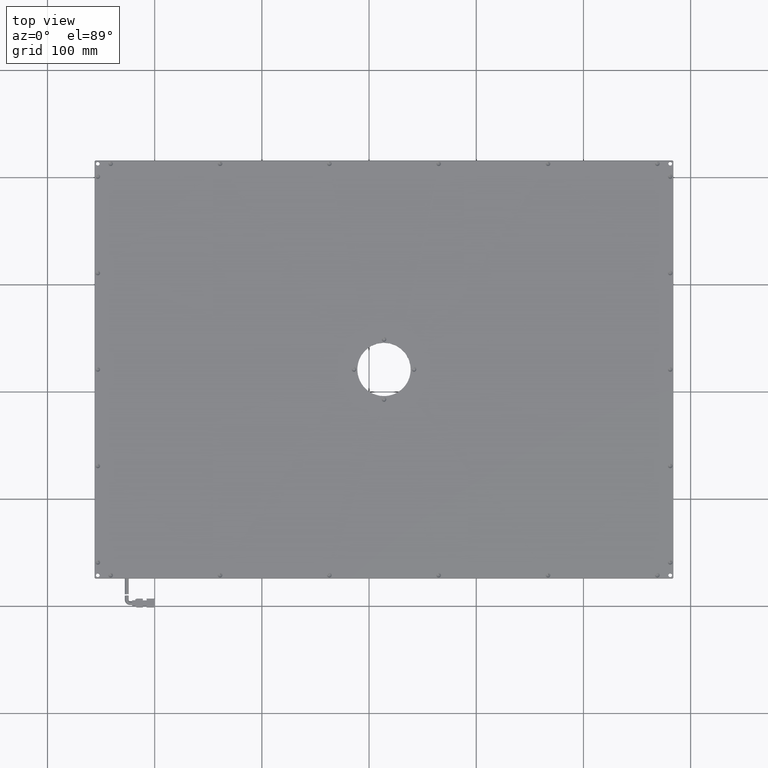
[diagram: clean part render]
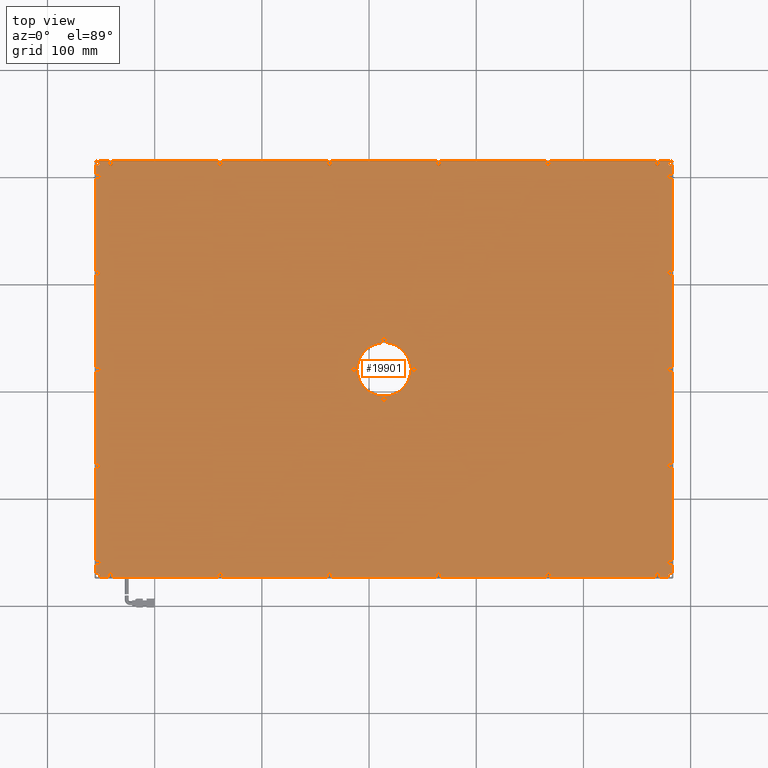
[diagram: same view with one face highlighted and labeled with its STEP entity id]
A machine part, top view. The second image highlights one B-rep face of the part: STEP entity #19901.
In plain terms, the highlighted planar face has unit normal (0, 0, -1).
Its self-contained STEP definition (entity closure, byte-faithful):
#15 = DIRECTION ( 'NONE',  ( 1.000000000000000000, 0.0000000000000000000, 0.0000000000000000000 ) ) ;
#161 = DIRECTION ( 'NONE',  ( 1.000000000000000000, 0.0000000000000000000, 0.0000000000000000000 ) ) ;
#209 = AXIS2_PLACEMENT_3D ( 'NONE', #23347, #39161, #22782 ) ;
#283 = DIRECTION ( 'NONE',  ( 1.000000000000000000, 0.0000000000000000000, 0.0000000000000000000 ) ) ;
#292 = ORIENTED_EDGE ( 'NONE', *, *, #37720, .T. ) ;
#314 = ORIENTED_EDGE ( 'NONE', *, *, #29261, .T. ) ;
#645 = CARTESIAN_POINT ( 'NONE',  ( 283.1409559512022700, -69.28772258669162900, 13.00000000006184600 ) ) ;
#677 = CARTESIAN_POINT ( 'NONE',  ( -253.0590440487347900, 20.71227741330838900, 13.00000000006184600 ) ) ;
#686 = VERTEX_POINT ( 'NONE', #16877 ) ;
#799 = CARTESIAN_POINT ( 'NONE',  ( -250.8590440487327300, -159.2877225866916100, 13.00000000006184600 ) ) ;
#840 = CARTESIAN_POINT ( 'NONE',  ( 13.94095595126520900, -7.287722586691636200, 13.00000000000500200 ) ) ;
#955 = FACE_BOUND ( 'NONE', #25453, .T. ) ;
#1020 = DIRECTION ( 'NONE',  ( 0.0000000000000000000, 0.0000000000000000000, -1.000000000000000000 ) ) ;
#1105 = DIRECTION ( 'NONE',  ( 1.000000000000000000, 0.0000000000000000000, 0.0000000000000000000 ) ) ;
#1133 = EDGE_LOOP ( 'NONE', ( #13675, #37497 ) ) ;
#1178 = DIRECTION ( 'NONE',  ( 1.000000000000000000, 0.0000000000000000000, 0.0000000000000000000 ) ) ;
#1187 = CARTESIAN_POINT ( 'NONE',  ( 166.9409559512651800, 212.7122774133083900, 13.00000000000500200 ) ) ;
#1202 = CARTESIAN_POINT ( 'NONE',  ( 11.74095595122221000, -7.287722586691636200, 13.00000000000500200 ) ) ;
#1208 = AXIS2_PLACEMENT_3D ( 'NONE', #3793, #23767, #19861 ) ;
#1219 = VERTEX_POINT ( 'NONE', #33043 ) ;
#1317 = CARTESIAN_POINT ( 'NONE',  ( 280.9409559512652100, 212.7122774133083900, 13.00000000001910100 ) ) ;
#1432 = CIRCLE ( 'NONE', #26206, 2.199999999937030100 ) ;
#1546 = VERTEX_POINT ( 'NONE', #799 ) ;
#1734 = AXIS2_PLACEMENT_3D ( 'NONE', #38835, #6206, #22186 ) ;
#1768 = VERTEX_POINT ( 'NONE', #21553 ) ;
#1787 = EDGE_LOOP ( 'NONE', ( #32552, #39678 ) ) ;
#1840 = CARTESIAN_POINT ( 'NONE',  ( 280.9409559512652100, -159.2877225866916100, 13.00000000006184600 ) ) ;
#1874 = VECTOR ( 'NONE', #10434, 1000.000000000000100 ) ;
#1880 = CARTESIAN_POINT ( 'NONE',  ( 278.7409559513282000, -159.2877225866916100, 13.00000000006184600 ) ) ;
#1918 = VECTOR ( 'NONE', #29982, 1000.000000000000100 ) ;
#1932 = EDGE_LOOP ( 'NONE', ( #4735, #25847 ) ) ;
#1958 = DIRECTION ( 'NONE',  ( -0.0000000000000000000, 0.0000000000000000000, -1.000000000000000000 ) ) ;
#1988 = FACE_BOUND ( 'NONE', #23336, .T. ) ;
#2056 = DIRECTION ( 'NONE',  ( 1.000000000000000000, 0.0000000000000000000, 0.0000000000000000000 ) ) ;
#2069 = DIRECTION ( 'NONE',  ( 1.000000000000000000, 0.0000000000000000000, 0.0000000000000000000 ) ) ;
#2089 = CIRCLE ( 'NONE', #41655, 2.200000000029345100 ) ;
#2176 = CIRCLE ( 'NONE', #27360, 2.200000000002089200 ) ;
#2335 = ORIENTED_EDGE ( 'NONE', *, *, #39982, .F. ) ;
#2361 = CARTESIAN_POINT ( 'NONE',  ( -141.2590440486559700, -171.2877225866916100, 13.00000000000500200 ) ) ;
#2468 = CARTESIAN_POINT ( 'NONE',  ( -253.0590440487347900, 110.7122774133084700, 13.00000000006184600 ) ) ;
#2546 = VERTEX_POINT ( 'NONE', #20026 ) ;
#2656 = DIRECTION ( 'NONE',  ( 1.000000000000000000, 0.0000000000000000000, 0.0000000000000000000 ) ) ;
#2827 = DIRECTION ( 'NONE',  ( -0.0000000000000000000, 0.0000000000000000000, -1.000000000000000000 ) ) ;
#2934 = VERTEX_POINT ( 'NONE', #10465 ) ;
#2949 = CARTESIAN_POINT ( 'NONE',  ( 39.74095595124727300, 20.71227741330844600, 13.00000000000500200 ) ) ;
#3001 = DIRECTION ( 'NONE',  ( 1.000000000000000000, 0.0000000000000000000, 0.0000000000000000000 ) ) ;
#3112 = AXIS2_PLACEMENT_3D ( 'NONE', #5383, #14910, #41351 ) ;
#3124 = DIRECTION ( 'NONE',  ( 1.000000000000000000, 0.0000000000000000000, 0.0000000000000000000 ) ) ;
#3135 = CARTESIAN_POINT ( 'NONE',  ( -253.0590440487347900, 212.7122774133083900, 13.00000000001910100 ) ) ;
#3238 = DIRECTION ( 'NONE',  ( 0.0000000000000000000, 0.0000000000000000000, -1.000000000000000000 ) ) ;
#3299 = DIRECTION ( 'NONE',  ( -0.0000000000000000000, 0.0000000000000000000, -1.000000000000000000 ) ) ;
#3304 = DIRECTION ( 'NONE',  ( 1.000000000000000000, 0.0000000000000000000, 0.0000000000000000000 ) ) ;
#3328 = EDGE_CURVE ( 'NONE', #37968, #23860, #6007, .T. ) ;
#3440 = VERTEX_POINT ( 'NONE', #6697 ) ;
#3469 = FACE_BOUND ( 'NONE', #38289, .T. ) ;
#3518 = VERTEX_POINT ( 'NONE', #40324 ) ;
#3552 = DIRECTION ( 'NONE',  ( 0.0000000000000000000, 0.0000000000000000000, -1.000000000000000000 ) ) ;
#3648 = CARTESIAN_POINT ( 'NONE',  ( -255.2590440487368800, 200.7122774133083900, 13.00000000006184600 ) ) ;
#3665 = CIRCLE ( 'NONE', #10508, 2.199999999961177500 ) ;
#3674 = DIRECTION ( 'NONE',  ( 0.0000000000000000000, 1.000000000000000000, 0.0000000000000000000 ) ) ;
#3793 = CARTESIAN_POINT ( 'NONE',  ( 13.94095595126520900, 20.71227741330838900, 13.00000000001910100 ) ) ;
#3835 = AXIS2_PLACEMENT_3D ( 'NONE', #15380, #1958, #34591 ) ;
#3885 = EDGE_CURVE ( 'NONE', #1546, #15770, #18742, .T. ) ;
#3969 = DIRECTION ( 'NONE',  ( 1.000000000000000000, 0.0000000000000000000, 0.0000000000000000000 ) ) ;
#4106 = AXIS2_PLACEMENT_3D ( 'NONE', #26362, #26508, #3969 ) ;
#4165 = DIRECTION ( 'NONE',  ( 0.0000000000000000000, -1.000000000000000000, 0.0000000000000000000 ) ) ;
#4235 = AXIS2_PLACEMENT_3D ( 'NONE', #840, #10958, #37088 ) ;
#4290 = AXIS2_PLACEMENT_3D ( 'NONE', #23433, #10474, #7038 ) ;
#4581 = DIRECTION ( 'NONE',  ( 1.000000000000000000, 0.0000000000000000000, 0.0000000000000000000 ) ) ;
#4638 = EDGE_LOOP ( 'NONE', ( #6889, #25621 ) ) ;
#4735 = ORIENTED_EDGE ( 'NONE', *, *, #11736, .T. ) ;
#4743 = AXIS2_PLACEMENT_3D ( 'NONE', #7064, #39676, #17101 ) ;
#4778 = VERTEX_POINT ( 'NONE', #1880 ) ;
#4934 = VERTEX_POINT ( 'NONE', #28692 ) ;
#4935 = DIRECTION ( 'NONE',  ( -0.0000000000000000000, 0.0000000000000000000, -1.000000000000000000 ) ) ;
#4976 = CARTESIAN_POINT ( 'NONE',  ( 280.9409559512652100, 200.7122774133083900, 13.00000000006184600 ) ) ;
#5276 = LINE ( 'NONE', #34247, #8365 ) ;
#5313 = EDGE_CURVE ( 'NONE', #16363, #10010, #34328, .T. ) ;
#5350 = VERTEX_POINT ( 'NONE', #36475 ) ;
#5356 = CIRCLE ( 'NONE', #39796, 2.199999999921153900 ) ;
#5383 = CARTESIAN_POINT ( 'NONE',  ( 64.94095595126519500, 212.7122774133083900, 13.00000000006184600 ) ) ;
#5431 = CARTESIAN_POINT ( 'NONE',  ( -241.0590440487347900, -171.2877225866916100, 13.00000000000500200 ) ) ;
#5489 = VERTEX_POINT ( 'NONE', #13513 ) ;
#5491 = FACE_BOUND ( 'NONE', #11164, .T. ) ;
#5717 = AXIS2_PLACEMENT_3D ( 'NONE', #14168, #30406, #20634 ) ;
#5739 = EDGE_CURVE ( 'NONE', #10517, #25896, #24051, .T. ) ;
#5745 = VERTEX_POINT ( 'NONE', #25162 ) ;
#5795 = VECTOR ( 'NONE', #8161, 1000.000000000000100 ) ;
#5829 = CARTESIAN_POINT ( 'NONE',  ( -139.0590440487348200, -171.2877225866916100, 13.00000000000500200 ) ) ;
#5851 = CIRCLE ( 'NONE', #17033, 2.199999999937030100 ) ;
#5921 = CARTESIAN_POINT ( 'NONE',  ( -250.8590440487327300, -69.28772258669162900, 13.00000000006184600 ) ) ;
#5962 = DIRECTION ( 'NONE',  ( 0.0000000000000000000, 0.0000000000000000000, -1.000000000000000000 ) ) ;
#6007 = CIRCLE ( 'NONE', #14123, 2.200000000002089200 ) ;
#6111 = AXIS2_PLACEMENT_3D ( 'NONE', #14280, #27395, #13847 ) ;
#6165 = LINE ( 'NONE', #31766, #26752 ) ;
#6206 = DIRECTION ( 'NONE',  ( 0.0000000000000000000, 0.0000000000000000000, -1.000000000000000000 ) ) ;
#6245 = DIRECTION ( 'NONE',  ( 1.000000000000000000, 0.0000000000000000000, 0.0000000000000000000 ) ) ;
#6275 = DIRECTION ( 'NONE',  ( 1.000000000000000000, 0.0000000000000000000, 0.0000000000000000000 ) ) ;
#6404 = ORIENTED_EDGE ( 'NONE', *, *, #32841, .T. ) ;
#6522 = FACE_BOUND ( 'NONE', #28046, .T. ) ;
#6535 = CIRCLE ( 'NONE', #32492, 1.750000000000029300 ) ;
#6578 = CIRCLE ( 'NONE', #42018, 2.199999999953433900 ) ;
#6697 = CARTESIAN_POINT ( 'NONE',  ( -255.5590440487347600, -173.0806158055050300, 13.00000000001909400 ) ) ;
#6748 = CIRCLE ( 'NONE', #14371, 2.200000000054380700 ) ;
#6798 = EDGE_CURVE ( 'NONE', #36772, #5489, #26983, .T. ) ;
#6889 = ORIENTED_EDGE ( 'NONE', *, *, #26715, .T. ) ;
#7038 = DIRECTION ( 'NONE',  ( 1.000000000000000000, 0.0000000000000000000, 0.0000000000000000000 ) ) ;
#7064 = CARTESIAN_POINT ( 'NONE',  ( -253.0590440487347900, -69.28772258669162900, 13.00000000006184600 ) ) ;
#7092 = AXIS2_PLACEMENT_3D ( 'NONE', #36667, #23491, #32924 ) ;
#7333 = LINE ( 'NONE', #11321, #5795 ) ;
#7336 = CARTESIAN_POINT ( 'NONE',  ( 278.7409559513282000, -69.28772258669162900, 13.00000000006184600 ) ) ;
#7433 = LINE ( 'NONE', #20414, #18720 ) ;
#7475 = VERTEX_POINT ( 'NONE', #2361 ) ;
#7539 = CARTESIAN_POINT ( 'NONE',  ( 38.94095595126523100, 20.71227741330839200, 13.00000000001910100 ) ) ;
#7556 = FACE_BOUND ( 'NONE', #15727, .T. ) ;
#7580 = CARTESIAN_POINT ( 'NONE',  ( -139.0590440487348200, 212.7122774133083900, 13.00000000000500200 ) ) ;
#7641 = AXIS2_PLACEMENT_3D ( 'NONE', #34462, #11094, #21286 ) ;
#7751 = CARTESIAN_POINT ( 'NONE',  ( -39.25904404868823900, -171.2877225866916100, 13.00000000000500200 ) ) ;
#7826 = VERTEX_POINT ( 'NONE', #7751 ) ;
#7863 = CARTESIAN_POINT ( 'NONE',  ( 164.7409559513039900, -171.2877225866916100, 13.00000000000500200 ) ) ;
#7945 = CARTESIAN_POINT ( 'NONE',  ( -253.0590440487347900, 200.7122774133083900, 13.00000000006184600 ) ) ;
#8016 = DIRECTION ( 'NONE',  ( 0.0000000000000000000, 0.0000000000000000000, 1.000000000000000000 ) ) ;
#8113 = DIRECTION ( 'NONE',  ( 1.000000000000000000, 0.0000000000000000000, 0.0000000000000000000 ) ) ;
#8134 = CIRCLE ( 'NONE', #39712, 1.749999999999973800 ) ;
#8161 = DIRECTION ( 'NONE',  ( 0.7071067811865474600, 0.7071067811865474600, 0.0000000000000000000 ) ) ;
#8365 = VECTOR ( 'NONE', #15322, 1000.000000000000000 ) ;
#8386 = CIRCLE ( 'NONE', #5717, 2.199999999953433900 ) ;
#8427 = DIRECTION ( 'NONE',  ( -1.000000000000000000, 0.0000000000000000000, 0.0000000000000000000 ) ) ;
#8466 = EDGE_CURVE ( 'NONE', #23055, #30585, #35307, .T. ) ;
#8511 = CARTESIAN_POINT ( 'NONE',  ( 278.7409559513282000, 200.7122774133083900, 13.00000000006184600 ) ) ;
#8594 = FACE_BOUND ( 'NONE', #9372, .T. ) ;
#8604 = CIRCLE ( 'NONE', #13900, 2.200000000059376700 ) ;
#8648 = EDGE_CURVE ( 'NONE', #7826, #16251, #12175, .T. ) ;
#8741 = DIRECTION ( 'NONE',  ( -0.0000000000000000000, 0.0000000000000000000, -1.000000000000000000 ) ) ;
#8792 = CARTESIAN_POINT ( 'NONE',  ( -250.8590440487327300, 20.71227741330838900, 13.00000000006184600 ) ) ;
#8942 = AXIS2_PLACEMENT_3D ( 'NONE', #27998, #8016, #8427 ) ;
#8990 = DIRECTION ( 'NONE',  ( -0.0000000000000000000, 0.0000000000000000000, -1.000000000000000000 ) ) ;
#9077 = ORIENTED_EDGE ( 'NONE', *, *, #18452, .T. ) ;
#9079 = FACE_OUTER_BOUND ( 'NONE', #24515, .T. ) ;
#9232 = CARTESIAN_POINT ( 'NONE',  ( -243.2590440487941800, 212.7122774133083900, 13.00000000000500200 ) ) ;
#9256 = VERTEX_POINT ( 'NONE', #645 ) ;
#9338 = EDGE_CURVE ( 'NONE', #17301, #18865, #7433, .T. ) ;
#9372 = EDGE_LOOP ( 'NONE', ( #23233, #16477 ) ) ;
#9390 = EDGE_CURVE ( 'NONE', #34711, #39377, #19263, .T. ) ;
#9411 = EDGE_CURVE ( 'NONE', #36897, #7475, #5356, .T. ) ;
#9778 = VERTEX_POINT ( 'NONE', #28605 ) ;
#9810 = DIRECTION ( 'NONE',  ( 1.000000000000000000, 0.0000000000000000000, 0.0000000000000000000 ) ) ;
#10010 = VERTEX_POINT ( 'NONE', #24127 ) ;
#10035 = ORIENTED_EDGE ( 'NONE', *, *, #28932, .F. ) ;
#10095 = CIRCLE ( 'NONE', #27976, 2.200000000059376700 ) ;
#10280 = AXIS2_PLACEMENT_3D ( 'NONE', #40647, #24248, #4581 ) ;
#10292 = CARTESIAN_POINT ( 'NONE',  ( 280.9409559512652100, -159.2877225866916100, 13.00000000006184600 ) ) ;
#10410 = AXIS2_PLACEMENT_3D ( 'NONE', #14796, #28305, #41520 ) ;
#10434 = DIRECTION ( 'NONE',  ( 0.7071067811865474600, -0.7071067811865474600, 0.0000000000000000000 ) ) ;
#10465 = CARTESIAN_POINT ( 'NONE',  ( 283.1409559512022700, -159.2877225866916100, 13.00000000006184600 ) ) ;
#10474 = DIRECTION ( 'NONE',  ( -0.0000000000000000000, 0.0000000000000000000, -1.000000000000000000 ) ) ;
#10508 = AXIS2_PLACEMENT_3D ( 'NONE', #38842, #25897, #36050 ) ;
#10517 = VERTEX_POINT ( 'NONE', #37550 ) ;
#10582 = CIRCLE ( 'NONE', #4290, 2.200000000002089200 ) ;
#10600 = CARTESIAN_POINT ( 'NONE',  ( -253.0590440487347900, 212.7122774133083900, 13.00000000001910100 ) ) ;
#10651 = FACE_BOUND ( 'NONE', #34679, .T. ) ;
#10726 = EDGE_LOOP ( 'NONE', ( #35345, #38393 ) ) ;
#10885 = DIRECTION ( 'NONE',  ( 1.000000000000000000, 0.0000000000000000000, 0.0000000000000000000 ) ) ;
#10958 = DIRECTION ( 'NONE',  ( 9.856383386548544600E-017, -0.0000000000000000000, 1.000000000000000000 ) ) ;
#11073 = DIRECTION ( 'NONE',  ( -0.0000000000000000000, 0.0000000000000000000, -1.000000000000000000 ) ) ;
#11094 = DIRECTION ( 'NONE',  ( 0.0000000000000000000, 0.0000000000000000000, -1.000000000000000000 ) ) ;
#11164 = EDGE_LOOP ( 'NONE', ( #27426, #17103 ) ) ;
#11188 = CIRCLE ( 'NONE', #12225, 2.200000000002089200 ) ;
#11211 = EDGE_LOOP ( 'NONE', ( #9077, #20969 ) ) ;
#11220 = ORIENTED_EDGE ( 'NONE', *, *, #16736, .T. ) ;
#11288 = DIRECTION ( 'NONE',  ( 1.000000000000000000, 0.0000000000000000000, 0.0000000000000000000 ) ) ;
#11319 = CIRCLE ( 'NONE', #14824, 2.199999999921153900 ) ;
#11321 = CARTESIAN_POINT ( 'NONE',  ( -255.5590440487347600, 214.5051706321220000, 13.00000000001910100 ) ) ;
#11481 = VERTEX_POINT ( 'NONE', #26813 ) ;
#11527 = ORIENTED_EDGE ( 'NONE', *, *, #41725, .T. ) ;
#11682 = CIRCLE ( 'NONE', #40602, 1.750000000000029300 ) ;
#11694 = FACE_BOUND ( 'NONE', #35707, .T. ) ;
#11736 = EDGE_CURVE ( 'NONE', #1768, #40539, #14007, .T. ) ;
#11779 = ORIENTED_EDGE ( 'NONE', *, *, #41470, .F. ) ;
#11829 = DIRECTION ( 'NONE',  ( 1.000000000000000000, 0.0000000000000000000, 0.0000000000000000000 ) ) ;
#12030 = DIRECTION ( 'NONE',  ( 0.0000000000000000000, -1.000000000000000000, 0.0000000000000000000 ) ) ;
#12093 = CARTESIAN_POINT ( 'NONE',  ( -136.8590440488136700, -171.2877225866916100, 13.00000000000500200 ) ) ;
#12175 = CIRCLE ( 'NONE', #14718, 2.199999999953433900 ) ;
#12181 = FACE_BOUND ( 'NONE', #29098, .T. ) ;
#12225 = AXIS2_PLACEMENT_3D ( 'NONE', #35666, #32927, #6245 ) ;
#12255 = CARTESIAN_POINT ( 'NONE',  ( -255.2590440487368800, -159.2877225866916100, 13.00000000006184600 ) ) ;
#12295 = EDGE_LOOP ( 'NONE', ( #31310, #19801 ) ) ;
#12329 = DIRECTION ( 'NONE',  ( 0.0000000000000000000, -9.856383386497560700E-017, 1.000000000000000000 ) ) ;
#12368 = EDGE_CURVE ( 'NONE', #30585, #23055, #39002, .T. ) ;
#12431 = CARTESIAN_POINT ( 'NONE',  ( 13.94095595126543300, 48.71227741330841400, 13.00000000000500200 ) ) ;
#12445 = DIRECTION ( 'NONE',  ( 0.0000000000000000000, -1.000000000000000000, 0.0000000000000000000 ) ) ;
#12504 = AXIS2_PLACEMENT_3D ( 'NONE', #20189, #16727, #23807 ) ;
#12589 = DIRECTION ( 'NONE',  ( -0.0000000000000000000, -9.856383386550534000E-017, -1.000000000000000000 ) ) ;
#12618 = EDGE_CURVE ( 'NONE', #20482, #35369, #8134, .T. ) ;
#12758 = CIRCLE ( 'NONE', #8942, 25.00000000000002100 ) ;
#13025 = DIRECTION ( 'NONE',  ( -0.0000000000000000000, 0.0000000000000000000, -1.000000000000000000 ) ) ;
#13072 = ORIENTED_EDGE ( 'NONE', *, *, #28935, .T. ) ;
#13103 = EDGE_CURVE ( 'NONE', #15770, #1546, #11188, .T. ) ;
#13121 = ORIENTED_EDGE ( 'NONE', *, *, #26331, .F. ) ;
#13215 = ORIENTED_EDGE ( 'NONE', *, *, #8466, .T. ) ;
#13513 = CARTESIAN_POINT ( 'NONE',  ( 283.1409559512022700, 200.7122774133083900, 13.00000000006184600 ) ) ;
#13562 = ORIENTED_EDGE ( 'NONE', *, *, #19469, .F. ) ;
#13675 = ORIENTED_EDGE ( 'NONE', *, *, #23829, .T. ) ;
#13700 = CARTESIAN_POINT ( 'NONE',  ( -255.5590440487347600, 214.5051706321220000, 13.00000000001910100 ) ) ;
#13792 = AXIS2_PLACEMENT_3D ( 'NONE', #1840, #34347, #8113 ) ;
#13820 = EDGE_CURVE ( 'NONE', #23669, #28796, #24872, .T. ) ;
#13847 = DIRECTION ( 'NONE',  ( 0.0000000000000000000, -1.000000000000000000, 0.0000000000000000000 ) ) ;
#13900 = AXIS2_PLACEMENT_3D ( 'NONE', #17763, #17479, #27723 ) ;
#13942 = DIRECTION ( 'NONE',  ( -0.0000000000000000000, 0.0000000000000000000, -1.000000000000000000 ) ) ;
#13984 = DIRECTION ( 'NONE',  ( -0.0000000000000000000, 0.0000000000000000000, -1.000000000000000000 ) ) ;
#14007 = CIRCLE ( 'NONE', #1734, 1.750000000000029300 ) ;
#14123 = AXIS2_PLACEMENT_3D ( 'NONE', #2468, #22396, #15903 ) ;
#14168 = CARTESIAN_POINT ( 'NONE',  ( -37.05904404873480500, 212.7122774133083900, 13.00000000000500200 ) ) ;
#14202 = AXIS2_PLACEMENT_3D ( 'NONE', #34158, #11073, #1105 ) ;
#14229 = ORIENTED_EDGE ( 'NONE', *, *, #36426, .T. ) ;
#14238 = VERTEX_POINT ( 'NONE', #8792 ) ;
#14243 = FACE_BOUND ( 'NONE', #40854, .T. ) ;
#14280 = CARTESIAN_POINT ( 'NONE',  ( 64.94095595126519500, 212.7122774133083900, 13.00000000006184600 ) ) ;
#14371 = AXIS2_PLACEMENT_3D ( 'NONE', #40353, #33395, #4165 ) ;
#14377 = AXIS2_PLACEMENT_3D ( 'NONE', #32306, #15801, #32569 ) ;
#14526 = CARTESIAN_POINT ( 'NONE',  ( -139.0590440487348200, -171.2877225866916100, 13.00000000000500200 ) ) ;
#14718 = AXIS2_PLACEMENT_3D ( 'NONE', #35951, #19741, #283 ) ;
#14741 = CIRCLE ( 'NONE', #1208, 25.00000000000002100 ) ;
#14796 = CARTESIAN_POINT ( 'NONE',  ( 13.94095595126520900, -7.287722586691636200, 13.00000000000500200 ) ) ;
#14824 = AXIS2_PLACEMENT_3D ( 'NONE', #5829, #35252, #22099 ) ;
#14910 = DIRECTION ( 'NONE',  ( -0.0000000000000000000, -9.856383386550534000E-017, -1.000000000000000000 ) ) ;
#14930 = CARTESIAN_POINT ( 'NONE',  ( 282.7338491700787100, -173.7877225866915600, 13.00000000001910500 ) ) ;
#15063 = CARTESIAN_POINT ( 'NONE',  ( 279.1909559512652100, 212.7122774133083900, 13.00000000001910100 ) ) ;
#15170 = VERTEX_POINT ( 'NONE', #37749 ) ;
#15199 = EDGE_LOOP ( 'NONE', ( #28415, #32376 ) ) ;
#15254 = EDGE_CURVE ( 'NONE', #7475, #36897, #11319, .T. ) ;
#15322 = DIRECTION ( 'NONE',  ( -1.000000000000000000, -0.0000000000000000000, -0.0000000000000000000 ) ) ;
#15380 = CARTESIAN_POINT ( 'NONE',  ( 268.9409559512652100, -171.2877225866916100, 13.00000000000500200 ) ) ;
#15404 = CARTESIAN_POINT ( 'NONE',  ( -254.8090440487347900, -171.2877225866916100, 13.00000000001910100 ) ) ;
#15628 = DIRECTION ( 'NONE',  ( 1.000000000000000000, 0.0000000000000000000, 0.0000000000000000000 ) ) ;
#15727 = EDGE_LOOP ( 'NONE', ( #39149, #30015 ) ) ;
#15770 = VERTEX_POINT ( 'NONE', #12255 ) ;
#15801 = DIRECTION ( 'NONE',  ( -0.0000000000000000000, -9.856383386550534000E-017, -1.000000000000000000 ) ) ;
#15866 = CARTESIAN_POINT ( 'NONE',  ( 44.14095595128320300, 20.71227741330844600, 13.00000000000500200 ) ) ;
#15882 = CARTESIAN_POINT ( 'NONE',  ( 13.94095595126543300, 48.71227741330841400, 13.00000000000500200 ) ) ;
#15884 = VECTOR ( 'NONE', #18576, 1000.000000000000100 ) ;
#15903 = DIRECTION ( 'NONE',  ( 1.000000000000000000, 0.0000000000000000000, 0.0000000000000000000 ) ) ;
#15990 = EDGE_CURVE ( 'NONE', #9778, #4934, #30144, .T. ) ;
#16109 = ORIENTED_EDGE ( 'NONE', *, *, #3885, .T. ) ;
#16148 = ORIENTED_EDGE ( 'NONE', *, *, #40007, .F. ) ;
#16251 = VERTEX_POINT ( 'NONE', #26320 ) ;
#16277 = FACE_BOUND ( 'NONE', #15199, .T. ) ;
#16280 = CARTESIAN_POINT ( 'NONE',  ( 280.9409559512652100, -171.2877225866916100, 13.00000000001910100 ) ) ;
#16363 = VERTEX_POINT ( 'NONE', #16943 ) ;
#16365 = LINE ( 'NONE', #31385, #15884 ) ;
#16477 = ORIENTED_EDGE ( 'NONE', *, *, #42399, .T. ) ;
#16659 = CARTESIAN_POINT ( 'NONE',  ( -39.25904404868823900, 212.7122774133083900, 13.00000000000500200 ) ) ;
#16712 = CARTESIAN_POINT ( 'NONE',  ( -251.3090440487348200, -171.2877225866916100, 13.00000000001910100 ) ) ;
#16727 = DIRECTION ( 'NONE',  ( -0.0000000000000000000, 0.0000000000000000000, -1.000000000000000000 ) ) ;
#16736 = EDGE_CURVE ( 'NONE', #5489, #36772, #5851, .T. ) ;
#16752 = DIRECTION ( 'NONE',  ( -0.0000000000000000000, 0.0000000000000000000, -1.000000000000000000 ) ) ;
#16765 = CARTESIAN_POINT ( 'NONE',  ( -255.2590440487368800, 110.7122774133084700, 13.00000000006184600 ) ) ;
#16796 = EDGE_CURVE ( 'NONE', #39220, #22458, #24878, .T. ) ;
#16877 = CARTESIAN_POINT ( 'NONE',  ( 16.14095595130821100, -7.287722586691636200, 13.00000000000500200 ) ) ;
#16943 = CARTESIAN_POINT ( 'NONE',  ( 278.7409559513282000, 20.71227741330838900, 13.00000000006184600 ) ) ;
#16947 = ORIENTED_EDGE ( 'NONE', *, *, #22696, .T. ) ;
#17033 = AXIS2_PLACEMENT_3D ( 'NONE', #39194, #39468, #32837 ) ;
#17087 = CARTESIAN_POINT ( 'NONE',  ( 280.9409559512652100, 20.71227741330838900, 13.00000000006184600 ) ) ;
#17101 = DIRECTION ( 'NONE',  ( 1.000000000000000000, 0.0000000000000000000, 0.0000000000000000000 ) ) ;
#17103 = ORIENTED_EDGE ( 'NONE', *, *, #3328, .T. ) ;
#17301 = VERTEX_POINT ( 'NONE', #22650 ) ;
#17319 = FACE_BOUND ( 'NONE', #19505, .T. ) ;
#17383 = DIRECTION ( 'NONE',  ( 1.000000000000000000, -0.0000000000000000000, 0.0000000000000000000 ) ) ;
#17388 = CARTESIAN_POINT ( 'NONE',  ( 278.7409559513282000, 110.7122774133084700, 13.00000000006184600 ) ) ;
#17402 = EDGE_CURVE ( 'NONE', #1219, #14238, #2176, .T. ) ;
#17407 = VERTEX_POINT ( 'NONE', #13700 ) ;
#17450 = AXIS2_PLACEMENT_3D ( 'NONE', #22343, #2827, #29233 ) ;
#17479 = DIRECTION ( 'NONE',  ( -0.0000000000000000000, 0.0000000000000000000, -1.000000000000000000 ) ) ;
#17631 = EDGE_CURVE ( 'NONE', #25424, #9256, #30851, .T. ) ;
#17663 = VERTEX_POINT ( 'NONE', #41586 ) ;
#17763 = CARTESIAN_POINT ( 'NONE',  ( -241.0590440487347900, 212.7122774133083900, 13.00000000000500200 ) ) ;
#17825 = FACE_BOUND ( 'NONE', #36230, .T. ) ;
#17877 = CIRCLE ( 'NONE', #21069, 2.199999999936586000 ) ;
#18029 = DIRECTION ( 'NONE',  ( 1.000000000000000000, 0.0000000000000000000, 0.0000000000000000000 ) ) ;
#18254 = CIRCLE ( 'NONE', #24472, 2.200000000017965400 ) ;
#18281 = VERTEX_POINT ( 'NONE', #22273 ) ;
#18354 = FACE_BOUND ( 'NONE', #12295, .T. ) ;
#18429 = CIRCLE ( 'NONE', #28469, 2.200000000002089200 ) ;
#18452 = EDGE_CURVE ( 'NONE', #27967, #27121, #40523, .T. ) ;
#18453 = CIRCLE ( 'NONE', #36378, 2.200000000054380700 ) ;
#18563 = EDGE_CURVE ( 'NONE', #37299, #21019, #12758, .T. ) ;
#18576 = DIRECTION ( 'NONE',  ( -0.7071067811865474600, 0.7071067811865474600, 0.0000000000000000000 ) ) ;
#18690 = CARTESIAN_POINT ( 'NONE',  ( 280.9409559512652100, -69.28772258669162900, 13.00000000006184600 ) ) ;
#18720 = VECTOR ( 'NONE', #17383, 1000.000000000000000 ) ;
#18742 = CIRCLE ( 'NONE', #17450, 2.200000000002089200 ) ;
#18745 = VERTEX_POINT ( 'NONE', #5921 ) ;
#18746 = ORIENTED_EDGE ( 'NONE', *, *, #12368, .T. ) ;
#18792 = VERTEX_POINT ( 'NONE', #2949 ) ;
#18865 = VERTEX_POINT ( 'NONE', #14930 ) ;
#19263 = CIRCLE ( 'NONE', #14202, 2.199999999937030100 ) ;
#19336 = DIRECTION ( 'NONE',  ( 1.000000000000000000, 0.0000000000000000000, 0.0000000000000000000 ) ) ;
#19469 = EDGE_CURVE ( 'NONE', #17301, #3440, #16365, .T. ) ;
#19492 = EDGE_LOOP ( 'NONE', ( #13121, #16148 ) ) ;
#19505 = EDGE_LOOP ( 'NONE', ( #32755, #38325 ) ) ;
#19607 = CIRCLE ( 'NONE', #7092, 2.199999999937030100 ) ;
#19741 = DIRECTION ( 'NONE',  ( -0.0000000000000000000, 0.0000000000000000000, -1.000000000000000000 ) ) ;
#19772 = CARTESIAN_POINT ( 'NONE',  ( 283.4409559512651500, 214.5051706321216600, 13.00000000001910600 ) ) ;
#19801 = ORIENTED_EDGE ( 'NONE', *, *, #30798, .F. ) ;
#19861 = DIRECTION ( 'NONE',  ( -1.000000000000000000, 0.0000000000000000000, 0.0000000000000000000 ) ) ;
#19901 = ADVANCED_FACE ( 'NONE', ( #24070, #28694, #22985, #20918, #25556, #8594, #16277, #14243, #6522, #12181, #5491, #31726, #18354, #34773, #10651, #3469, #1988, #42020, #29187, #20424, #40476, #17825, #37361, #17319, #11694, #955, #27136, #9079, #39416, #36291, #7556, #38415 ), #31051, .F. ) ;
#19965 = CARTESIAN_POINT ( 'NONE',  ( -253.0590440487347900, -171.2877225866916100, 13.00000000001910100 ) ) ;
#20026 = CARTESIAN_POINT ( 'NONE',  ( 64.94095595126519500, 210.5122774133795400, 13.00000000006184600 ) ) ;
#20117 = DIRECTION ( 'NONE',  ( -0.0000000000000000000, 0.0000000000000000000, -1.000000000000000000 ) ) ;
#20148 = DIRECTION ( 'NONE',  ( 1.000000000000000000, 0.0000000000000000000, 0.0000000000000000000 ) ) ;
#20189 = CARTESIAN_POINT ( 'NONE',  ( -253.0590440487347900, -69.28772258669162900, 13.00000000006184600 ) ) ;
#20242 = ORIENTED_EDGE ( 'NONE', *, *, #27118, .F. ) ;
#20353 = LINE ( 'NONE', #36422, #1918 ) ;
#20359 = CIRCLE ( 'NONE', #40347, 1.749999999999973800 ) ;
#20414 = CARTESIAN_POINT ( 'NONE',  ( -256.0590440487347900, -173.7877225866915600, 13.00000000001910100 ) ) ;
#20424 = FACE_BOUND ( 'NONE', #1787, .T. ) ;
#20482 = VERTEX_POINT ( 'NONE', #40514 ) ;
#20634 = DIRECTION ( 'NONE',  ( 1.000000000000000000, 0.0000000000000000000, 0.0000000000000000000 ) ) ;
#20758 = AXIS2_PLACEMENT_3D ( 'NONE', #7580, #13025, #37006 ) ;
#20888 = CARTESIAN_POINT ( 'NONE',  ( -254.8519372675484100, 215.2122774133083300, 13.00000000001910100 ) ) ;
#20918 = FACE_BOUND ( 'NONE', #11211, .T. ) ;
#20969 = ORIENTED_EDGE ( 'NONE', *, *, #37340, .T. ) ;
#21019 = VERTEX_POINT ( 'NONE', #7539 ) ;
#21069 = AXIS2_PLACEMENT_3D ( 'NONE', #37022, #33266, #39925 ) ;
#21286 = DIRECTION ( 'NONE',  ( -1.000000000000000000, 0.0000000000000000000, -0.0000000000000000000 ) ) ;
#21393 = CARTESIAN_POINT ( 'NONE',  ( 41.94095595126523800, 20.71227741330844600, 13.00000000000500200 ) ) ;
#21553 = CARTESIAN_POINT ( 'NONE',  ( 282.6909559512652700, 212.7122774133083900, 13.00000000001910100 ) ) ;
#21594 = EDGE_LOOP ( 'NONE', ( #38762, #27457 ) ) ;
#21673 = DIRECTION ( 'NONE',  ( 0.0000000000000000000, -0.0000000000000000000, 1.000000000000000000 ) ) ;
#21684 = EDGE_CURVE ( 'NONE', #18281, #32620, #6748, .T. ) ;
#21748 = VERTEX_POINT ( 'NONE', #26702 ) ;
#22099 = DIRECTION ( 'NONE',  ( 1.000000000000000000, 0.0000000000000000000, 0.0000000000000000000 ) ) ;
#22131 = EDGE_CURVE ( 'NONE', #30094, #17663, #2089, .T. ) ;
#22144 = CARTESIAN_POINT ( 'NONE',  ( -141.2590440486559700, 212.7122774133083900, 13.00000000000500200 ) ) ;
#22186 = DIRECTION ( 'NONE',  ( 1.000000000000000000, 0.0000000000000000000, 0.0000000000000000000 ) ) ;
#22188 = CIRCLE ( 'NONE', #36715, 2.199999999961177500 ) ;
#22273 = CARTESIAN_POINT ( 'NONE',  ( -14.05904404873481500, 22.91227741336271300, 13.00000000000500200 ) ) ;
#22313 = EDGE_CURVE ( 'NONE', #2546, #11481, #22740, .T. ) ;
#22323 = EDGE_CURVE ( 'NONE', #23860, #37968, #25262, .T. ) ;
#22343 = CARTESIAN_POINT ( 'NONE',  ( -253.0590440487347900, -159.2877225866916100, 13.00000000006184600 ) ) ;
#22361 = CARTESIAN_POINT ( 'NONE',  ( -136.8590440488136700, 212.7122774133083900, 13.00000000000500200 ) ) ;
#22396 = DIRECTION ( 'NONE',  ( -0.0000000000000000000, 0.0000000000000000000, -1.000000000000000000 ) ) ;
#22433 = DIRECTION ( 'NONE',  ( -0.0000000000000000000, -1.000000000000000000, -0.0000000000000000000 ) ) ;
#22458 = VERTEX_POINT ( 'NONE', #28254 ) ;
#22586 = EDGE_CURVE ( 'NONE', #38962, #5350, #3665, .T. ) ;
#22650 = CARTESIAN_POINT ( 'NONE',  ( -254.8519372675482400, -173.7877225866915600, 13.00000000001909800 ) ) ;
#22696 = EDGE_CURVE ( 'NONE', #18745, #21748, #31886, .T. ) ;
#22700 = DIRECTION ( 'NONE',  ( -0.0000000000000000000, 0.0000000000000000000, -1.000000000000000000 ) ) ;
#22724 = VERTEX_POINT ( 'NONE', #3648 ) ;
#22740 = CIRCLE ( 'NONE', #6111, 2.199999999928870000 ) ;
#22782 = DIRECTION ( 'NONE',  ( 1.000000000000000000, 0.0000000000000000000, 0.0000000000000000000 ) ) ;
#22806 = DIRECTION ( 'NONE',  ( -0.0000000000000000000, 0.0000000000000000000, -1.000000000000000000 ) ) ;
#22862 = DIRECTION ( 'NONE',  ( 0.0000000000000000000, 0.0000000000000000000, -1.000000000000000000 ) ) ;
#22985 = FACE_BOUND ( 'NONE', #34903, .T. ) ;
#22993 = CIRCLE ( 'NONE', #13792, 2.199999999937030100 ) ;
#23055 = VERTEX_POINT ( 'NONE', #34740 ) ;
#23068 = CARTESIAN_POINT ( 'NONE',  ( -250.8590440487327300, 110.7122774133084700, 13.00000000006184600 ) ) ;
#23166 = CARTESIAN_POINT ( 'NONE',  ( -241.0590440487347900, -171.2877225866916100, 13.00000000000500200 ) ) ;
#23184 = EDGE_CURVE ( 'NONE', #17407, #3440, #6165, .T. ) ;
#23209 = CIRCLE ( 'NONE', #4106, 2.199999999937030100 ) ;
#23233 = ORIENTED_EDGE ( 'NONE', *, *, #15990, .T. ) ;
#23336 = EDGE_LOOP ( 'NONE', ( #28510, #25566 ) ) ;
#23339 = AXIS2_PLACEMENT_3D ( 'NONE', #34089, #33944, #1178 ) ;
#23347 = CARTESIAN_POINT ( 'NONE',  ( -253.0590440487347900, -171.2877225866916100, 13.00000000001910100 ) ) ;
#23425 = ORIENTED_EDGE ( 'NONE', *, *, #37518, .T. ) ;
#23433 = CARTESIAN_POINT ( 'NONE',  ( -253.0590440487347900, 200.7122774133083900, 13.00000000006184600 ) ) ;
#23443 = DIRECTION ( 'NONE',  ( 1.000000000000000000, 0.0000000000000000000, 0.0000000000000000000 ) ) ;
#23491 = DIRECTION ( 'NONE',  ( -0.0000000000000000000, 0.0000000000000000000, -1.000000000000000000 ) ) ;
#23539 = CARTESIAN_POINT ( 'NONE',  ( 282.7338491700784900, 215.2122774133083300, 13.00000000001910100 ) ) ;
#23571 = ORIENTED_EDGE ( 'NONE', *, *, #22131, .F. ) ;
#23589 = DIRECTION ( 'NONE',  ( -0.0000000000000000000, 0.0000000000000000000, -1.000000000000000000 ) ) ;
#23658 = EDGE_LOOP ( 'NONE', ( #2335, #11779 ) ) ;
#23669 = VERTEX_POINT ( 'NONE', #37753 ) ;
#23767 = DIRECTION ( 'NONE',  ( 0.0000000000000000000, 0.0000000000000000000, 1.000000000000000000 ) ) ;
#23771 = EDGE_CURVE ( 'NONE', #16251, #7826, #6578, .T. ) ;
#23807 = DIRECTION ( 'NONE',  ( 1.000000000000000000, 0.0000000000000000000, 0.0000000000000000000 ) ) ;
#23829 = EDGE_CURVE ( 'NONE', #35369, #20482, #24045, .T. ) ;
#23831 = DIRECTION ( 'NONE',  ( -0.0000000000000000000, 0.0000000000000000000, -1.000000000000000000 ) ) ;
#23860 = VERTEX_POINT ( 'NONE', #23068 ) ;
#23875 = CARTESIAN_POINT ( 'NONE',  ( -251.3090440487348200, 212.7122774133083900, 13.00000000001910100 ) ) ;
#23887 = EDGE_CURVE ( 'NONE', #27928, #38580, #31740, .T. ) ;
#23898 = EDGE_CURVE ( 'NONE', #39077, #15170, #10095, .T. ) ;
#24045 = CIRCLE ( 'NONE', #33131, 1.749999999999973800 ) ;
#24051 = CIRCLE ( 'NONE', #3835, 2.199999999936586000 ) ;
#24070 = FACE_BOUND ( 'NONE', #1932, .T. ) ;
#24127 = CARTESIAN_POINT ( 'NONE',  ( 283.1409559512022700, 20.71227741330838900, 13.00000000006184600 ) ) ;
#24248 = DIRECTION ( 'NONE',  ( -0.0000000000000000000, 0.0000000000000000000, -1.000000000000000000 ) ) ;
#24267 = ORIENTED_EDGE ( 'NONE', *, *, #29287, .T. ) ;
#24293 = DIRECTION ( 'NONE',  ( 1.000000000000000000, 0.0000000000000000000, 0.0000000000000000000 ) ) ;
#24387 = CIRCLE ( 'NONE', #35125, 2.200000000002089200 ) ;
#24472 = AXIS2_PLACEMENT_3D ( 'NONE', #21393, #21673, #2056 ) ;
#24515 = EDGE_LOOP ( 'NONE', ( #30257, #39719, #20242, #13072, #10035, #38010, #13562, #27707 ) ) ;
#24688 = CIRCLE ( 'NONE', #28168, 2.200000000029345100 ) ;
#24872 = LINE ( 'NONE', #36364, #26382 ) ;
#24878 = CIRCLE ( 'NONE', #30846, 2.199999999953433900 ) ;
#24879 = EDGE_LOOP ( 'NONE', ( #28564, #41119 ) ) ;
#25162 = CARTESIAN_POINT ( 'NONE',  ( 266.7409559513286000, 212.7122774133083900, 13.00000000000500200 ) ) ;
#25194 = CIRCLE ( 'NONE', #20758, 2.199999999921153900 ) ;
#25262 = CIRCLE ( 'NONE', #39969, 2.200000000002089200 ) ;
#25316 = DIRECTION ( 'NONE',  ( -0.0000000000000000000, 0.0000000000000000000, -1.000000000000000000 ) ) ;
#25424 = VERTEX_POINT ( 'NONE', #7336 ) ;
#25453 = EDGE_LOOP ( 'NONE', ( #31309, #292 ) ) ;
#25556 = FACE_BOUND ( 'NONE', #39067, .T. ) ;
#25566 = ORIENTED_EDGE ( 'NONE', *, *, #41212, .T. ) ;
#25621 = ORIENTED_EDGE ( 'NONE', *, *, #26902, .T. ) ;
#25690 = CARTESIAN_POINT ( 'NONE',  ( -14.05904404873481500, 18.51227741325395100, 13.00000000000500200 ) ) ;
#25741 = AXIS2_PLACEMENT_3D ( 'NONE', #5431, #3299, #15628 ) ;
#25847 = ORIENTED_EDGE ( 'NONE', *, *, #32958, .T. ) ;
#25896 = VERTEX_POINT ( 'NONE', #30145 ) ;
#25897 = DIRECTION ( 'NONE',  ( -0.0000000000000000000, 0.0000000000000000000, -1.000000000000000000 ) ) ;
#25989 = CARTESIAN_POINT ( 'NONE',  ( -139.0590440487348200, 212.7122774133083900, 13.00000000000500200 ) ) ;
#26206 = AXIS2_PLACEMENT_3D ( 'NONE', #10292, #16752, #3304 ) ;
#26320 = CARTESIAN_POINT ( 'NONE',  ( -34.85904404878137100, -171.2877225866916100, 13.00000000000500200 ) ) ;
#26331 = EDGE_CURVE ( 'NONE', #34811, #18792, #27650, .T. ) ;
#26362 = CARTESIAN_POINT ( 'NONE',  ( 280.9409559512652100, 20.71227741330838900, 13.00000000006184600 ) ) ;
#26382 = VECTOR ( 'NONE', #3674, 1000.000000000000000 ) ;
#26508 = DIRECTION ( 'NONE',  ( -0.0000000000000000000, 0.0000000000000000000, -1.000000000000000000 ) ) ;
#26702 = CARTESIAN_POINT ( 'NONE',  ( -255.2590440487368800, -69.28772258669162900, 13.00000000006184600 ) ) ;
#26715 = EDGE_CURVE ( 'NONE', #2934, #4778, #22993, .T. ) ;
#26752 = VECTOR ( 'NONE', #22433, 1000.000000000000000 ) ;
#26755 = AXIS2_PLACEMENT_3D ( 'NONE', #1187, #30555, #18029 ) ;
#26813 = CARTESIAN_POINT ( 'NONE',  ( 64.94095595126519500, 214.9122774132372600, 13.00000000006184600 ) ) ;
#26839 = CARTESIAN_POINT ( 'NONE',  ( -37.05904404873480500, 212.7122774133083900, 13.00000000000500200 ) ) ;
#26902 = EDGE_CURVE ( 'NONE', #4778, #2934, #1432, .T. ) ;
#26983 = CIRCLE ( 'NONE', #33285, 2.199999999937030100 ) ;
#27051 = VERTEX_POINT ( 'NONE', #29849 ) ;
#27058 = EDGE_CURVE ( 'NONE', #23669, #18865, #20353, .T. ) ;
#27118 = EDGE_CURVE ( 'NONE', #42080, #28796, #29589, .T. ) ;
#27121 = VERTEX_POINT ( 'NONE', #7863 ) ;
#27136 = FACE_BOUND ( 'NONE', #1133, .T. ) ;
#27360 = AXIS2_PLACEMENT_3D ( 'NONE', #677, #30074, #20148 ) ;
#27395 = DIRECTION ( 'NONE',  ( -0.0000000000000000000, -9.856383386550534000E-017, -1.000000000000000000 ) ) ;
#27426 = ORIENTED_EDGE ( 'NONE', *, *, #22323, .T. ) ;
#27457 = ORIENTED_EDGE ( 'NONE', *, *, #34473, .T. ) ;
#27518 = DIRECTION ( 'NONE',  ( 1.000000000000000000, 0.0000000000000000000, 0.0000000000000000000 ) ) ;
#27650 = CIRCLE ( 'NONE', #33005, 2.200000000017965400 ) ;
#27707 = ORIENTED_EDGE ( 'NONE', *, *, #9338, .T. ) ;
#27723 = DIRECTION ( 'NONE',  ( 1.000000000000000000, 0.0000000000000000000, 0.0000000000000000000 ) ) ;
#27928 = VERTEX_POINT ( 'NONE', #15404 ) ;
#27967 = VERTEX_POINT ( 'NONE', #39096 ) ;
#27976 = AXIS2_PLACEMENT_3D ( 'NONE', #35816, #39572, #40449 ) ;
#27998 = CARTESIAN_POINT ( 'NONE',  ( 13.94095595126520900, 20.71227741330838900, 13.00000000001910100 ) ) ;
#28005 = ORIENTED_EDGE ( 'NONE', *, *, #8648, .T. ) ;
#28046 = EDGE_LOOP ( 'NONE', ( #11220, #41977 ) ) ;
#28136 = EDGE_CURVE ( 'NONE', #38580, #27928, #20359, .T. ) ;
#28168 = AXIS2_PLACEMENT_3D ( 'NONE', #12431, #39137, #29245 ) ;
#28169 = ORIENTED_EDGE ( 'NONE', *, *, #36410, .T. ) ;
#28242 = EDGE_CURVE ( 'NONE', #34181, #22724, #10582, .T. ) ;
#28254 = CARTESIAN_POINT ( 'NONE',  ( -34.85904404878137100, 212.7122774133083900, 13.00000000000500200 ) ) ;
#28305 = DIRECTION ( 'NONE',  ( 9.856383386548544600E-017, -0.0000000000000000000, 1.000000000000000000 ) ) ;
#28318 = CARTESIAN_POINT ( 'NONE',  ( 11.74095595123608700, 48.71227741330841400, 13.00000000000500200 ) ) ;
#28361 = CIRCLE ( 'NONE', #26755, 2.199999999961177500 ) ;
#28403 = CARTESIAN_POINT ( 'NONE',  ( 64.94095595126519500, -169.0877225867627400, 13.00000000006184600 ) ) ;
#28415 = ORIENTED_EDGE ( 'NONE', *, *, #33701, .T. ) ;
#28469 = AXIS2_PLACEMENT_3D ( 'NONE', #7945, #4935, #27518 ) ;
#28510 = ORIENTED_EDGE ( 'NONE', *, *, #22313, .T. ) ;
#28564 = ORIENTED_EDGE ( 'NONE', *, *, #42590, .T. ) ;
#28605 = CARTESIAN_POINT ( 'NONE',  ( -238.8590440486754300, -171.2877225866916100, 13.00000000000500200 ) ) ;
#28607 = CIRCLE ( 'NONE', #32144, 2.199999999921153900 ) ;
#28692 = CARTESIAN_POINT ( 'NONE',  ( -243.2590440487941800, -171.2877225866916100, 13.00000000000500200 ) ) ;
#28694 = FACE_BOUND ( 'NONE', #34944, .T. ) ;
#28731 = VERTEX_POINT ( 'NONE', #1202 ) ;
#28796 = VERTEX_POINT ( 'NONE', #19772 ) ;
#28831 = CARTESIAN_POINT ( 'NONE',  ( 283.1409559512022700, 110.7122774133084700, 13.00000000006184600 ) ) ;
#28932 = EDGE_CURVE ( 'NONE', #17407, #29333, #7333, .T. ) ;
#28935 = EDGE_CURVE ( 'NONE', #42080, #29333, #5276, .T. ) ;
#28999 = CARTESIAN_POINT ( 'NONE',  ( -37.05904404873480500, -171.2877225866916100, 13.00000000000500200 ) ) ;
#29098 = EDGE_LOOP ( 'NONE', ( #16947, #6404 ) ) ;
#29187 = FACE_BOUND ( 'NONE', #21594, .T. ) ;
#29201 = CIRCLE ( 'NONE', #37757, 1.750000000000029300 ) ;
#29233 = DIRECTION ( 'NONE',  ( 1.000000000000000000, 0.0000000000000000000, 0.0000000000000000000 ) ) ;
#29245 = DIRECTION ( 'NONE',  ( 1.000000000000000000, 0.0000000000000000000, 0.0000000000000000000 ) ) ;
#29261 = EDGE_CURVE ( 'NONE', #39377, #34711, #19607, .T. ) ;
#29287 = EDGE_CURVE ( 'NONE', #10010, #16363, #23209, .T. ) ;
#29333 = VERTEX_POINT ( 'NONE', #20888 ) ;
#29384 = AXIS2_PLACEMENT_3D ( 'NONE', #42406, #41999, #2656 ) ;
#29424 = ORIENTED_EDGE ( 'NONE', *, *, #13103, .T. ) ;
#29438 = DIRECTION ( 'NONE',  ( 1.000000000000000000, 0.0000000000000000000, 0.0000000000000000000 ) ) ;
#29589 = LINE ( 'NONE', #23539, #1874 ) ;
#29849 = CARTESIAN_POINT ( 'NONE',  ( 279.1909559512652100, -171.2877225866916100, 13.00000000001910100 ) ) ;
#29982 = DIRECTION ( 'NONE',  ( -0.7071067811865474600, -0.7071067811865474600, 0.0000000000000000000 ) ) ;
#30015 = ORIENTED_EDGE ( 'NONE', *, *, #21684, .F. ) ;
#30074 = DIRECTION ( 'NONE',  ( -0.0000000000000000000, 0.0000000000000000000, -1.000000000000000000 ) ) ;
#30094 = VERTEX_POINT ( 'NONE', #28318 ) ;
#30144 = CIRCLE ( 'NONE', #33249, 2.200000000059376700 ) ;
#30145 = CARTESIAN_POINT ( 'NONE',  ( 266.7409559513286000, -171.2877225866916100, 13.00000000000500200 ) ) ;
#30257 = ORIENTED_EDGE ( 'NONE', *, *, #27058, .F. ) ;
#30406 = DIRECTION ( 'NONE',  ( -0.0000000000000000000, 0.0000000000000000000, -1.000000000000000000 ) ) ;
#30555 = DIRECTION ( 'NONE',  ( -0.0000000000000000000, 0.0000000000000000000, -1.000000000000000000 ) ) ;
#30570 = ORIENTED_EDGE ( 'NONE', *, *, #23887, .T. ) ;
#30585 = VERTEX_POINT ( 'NONE', #28403 ) ;
#30596 = CIRCLE ( 'NONE', #10410, 2.200000000043000900 ) ;
#30798 = EDGE_CURVE ( 'NONE', #21019, #37299, #14741, .T. ) ;
#30846 = AXIS2_PLACEMENT_3D ( 'NONE', #26839, #39897, #40187 ) ;
#30851 = CIRCLE ( 'NONE', #33884, 2.199999999937030100 ) ;
#31051 = PLANE ( 'NONE',  #7641 ) ;
#31309 = ORIENTED_EDGE ( 'NONE', *, *, #5739, .T. ) ;
#31310 = ORIENTED_EDGE ( 'NONE', *, *, #18563, .F. ) ;
#31385 = CARTESIAN_POINT ( 'NONE',  ( -254.8519372675482400, -173.7877225866915600, 13.00000000001910100 ) ) ;
#31439 = CARTESIAN_POINT ( 'NONE',  ( -250.8590440487327300, 200.7122774133083900, 13.00000000006184600 ) ) ;
#31726 = FACE_BOUND ( 'NONE', #38797, .T. ) ;
#31740 = CIRCLE ( 'NONE', #209, 1.749999999999973800 ) ;
#31762 = CIRCLE ( 'NONE', #29384, 2.199999999937030100 ) ;
#31766 = CARTESIAN_POINT ( 'NONE',  ( -255.5590440487347600, 215.7122774133083900, 13.00000000001910100 ) ) ;
#31886 = CIRCLE ( 'NONE', #4743, 2.200000000002089200 ) ;
#31974 = CARTESIAN_POINT ( 'NONE',  ( 64.94095595126519500, -171.2877225866916100, 13.00000000006184600 ) ) ;
#31979 = DIRECTION ( 'NONE',  ( 0.0000000000000000000, -0.0000000000000000000, 1.000000000000000000 ) ) ;
#31996 = CARTESIAN_POINT ( 'NONE',  ( -14.05904404873481500, 20.71227741330833200, 13.00000000000500200 ) ) ;
#32144 = AXIS2_PLACEMENT_3D ( 'NONE', #25989, #22700, #29438 ) ;
#32200 = CARTESIAN_POINT ( 'NONE',  ( 271.1409559512018200, 212.7122774133083900, 13.00000000000500200 ) ) ;
#32306 = CARTESIAN_POINT ( 'NONE',  ( 64.94095595126519500, -171.2877225866916100, 13.00000000006184600 ) ) ;
#32376 = ORIENTED_EDGE ( 'NONE', *, *, #17631, .T. ) ;
#32492 = AXIS2_PLACEMENT_3D ( 'NONE', #16280, #3238, #9810 ) ;
#32518 = EDGE_CURVE ( 'NONE', #32620, #18281, #18453, .T. ) ;
#32552 = ORIENTED_EDGE ( 'NONE', *, *, #34273, .T. ) ;
#32569 = DIRECTION ( 'NONE',  ( 0.0000000000000000000, -1.000000000000000000, 0.0000000000000000000 ) ) ;
#32587 = AXIS2_PLACEMENT_3D ( 'NONE', #33963, #23831, #40646 ) ;
#32620 = VERTEX_POINT ( 'NONE', #25690 ) ;
#32755 = ORIENTED_EDGE ( 'NONE', *, *, #9411, .T. ) ;
#32837 = DIRECTION ( 'NONE',  ( 1.000000000000000000, 0.0000000000000000000, 0.0000000000000000000 ) ) ;
#32841 = EDGE_CURVE ( 'NONE', #21748, #18745, #40999, .T. ) ;
#32924 = DIRECTION ( 'NONE',  ( 1.000000000000000000, 0.0000000000000000000, 0.0000000000000000000 ) ) ;
#32927 = DIRECTION ( 'NONE',  ( -0.0000000000000000000, 0.0000000000000000000, -1.000000000000000000 ) ) ;
#32958 = EDGE_CURVE ( 'NONE', #40539, #1768, #11682, .T. ) ;
#33005 = AXIS2_PLACEMENT_3D ( 'NONE', #38883, #31979, #19336 ) ;
#33043 = CARTESIAN_POINT ( 'NONE',  ( -255.2590440487368800, 20.71227741330838900, 13.00000000006184600 ) ) ;
#33131 = AXIS2_PLACEMENT_3D ( 'NONE', #3135, #3552, #161 ) ;
#33249 = AXIS2_PLACEMENT_3D ( 'NONE', #23166, #20117, #39382 ) ;
#33266 = DIRECTION ( 'NONE',  ( -0.0000000000000000000, 0.0000000000000000000, -1.000000000000000000 ) ) ;
#33285 = AXIS2_PLACEMENT_3D ( 'NONE', #4976, #34363, #11288 ) ;
#33395 = DIRECTION ( 'NONE',  ( 0.0000000000000000000, -9.856383386497560700E-017, 1.000000000000000000 ) ) ;
#33513 = ORIENTED_EDGE ( 'NONE', *, *, #41285, .F. ) ;
#33701 = EDGE_CURVE ( 'NONE', #9256, #25424, #31762, .T. ) ;
#33884 = AXIS2_PLACEMENT_3D ( 'NONE', #18690, #25316, #11829 ) ;
#33944 = DIRECTION ( 'NONE',  ( -0.0000000000000000000, 0.0000000000000000000, -1.000000000000000000 ) ) ;
#33963 = CARTESIAN_POINT ( 'NONE',  ( 166.9409559512651800, -171.2877225866916100, 13.00000000000500200 ) ) ;
#34089 = CARTESIAN_POINT ( 'NONE',  ( 268.9409559512652100, 212.7122774133083900, 13.00000000000500200 ) ) ;
#34115 = DIRECTION ( 'NONE',  ( 0.0000000000000000000, 0.0000000000000000000, -1.000000000000000000 ) ) ;
#34158 = CARTESIAN_POINT ( 'NONE',  ( 280.9409559512652100, 110.7122774133084700, 13.00000000006184600 ) ) ;
#34181 = VERTEX_POINT ( 'NONE', #31439 ) ;
#34247 = CARTESIAN_POINT ( 'NONE',  ( -256.0590440487347900, 215.2122774133083300, 13.00000000001910100 ) ) ;
#34273 = EDGE_CURVE ( 'NONE', #14238, #1219, #24387, .T. ) ;
#34328 = CIRCLE ( 'NONE', #37089, 2.199999999937030100 ) ;
#34347 = DIRECTION ( 'NONE',  ( -0.0000000000000000000, 0.0000000000000000000, -1.000000000000000000 ) ) ;
#34356 = CIRCLE ( 'NONE', #4235, 2.200000000043000900 ) ;
#34358 = ORIENTED_EDGE ( 'NONE', *, *, #9390, .T. ) ;
#34363 = DIRECTION ( 'NONE',  ( -0.0000000000000000000, 0.0000000000000000000, -1.000000000000000000 ) ) ;
#34462 = CARTESIAN_POINT ( 'NONE',  ( -256.0590440487347900, 215.7122774133083900, 13.00000000001910100 ) ) ;
#34473 = EDGE_CURVE ( 'NONE', #5745, #41954, #36683, .T. ) ;
#34489 = EDGE_CURVE ( 'NONE', #22458, #39220, #8386, .T. ) ;
#34591 = DIRECTION ( 'NONE',  ( 1.000000000000000000, 0.0000000000000000000, 0.0000000000000000000 ) ) ;
#34679 = EDGE_LOOP ( 'NONE', ( #38778, #23425 ) ) ;
#34711 = VERTEX_POINT ( 'NONE', #28831 ) ;
#34740 = CARTESIAN_POINT ( 'NONE',  ( 64.94095595126519500, -173.4877225866204900, 13.00000000006184600 ) ) ;
#34773 = FACE_BOUND ( 'NONE', #24879, .T. ) ;
#34811 = VERTEX_POINT ( 'NONE', #15866 ) ;
#34849 = CARTESIAN_POINT ( 'NONE',  ( -11.05904404873481200, 20.71227741330838900, 13.00000000001910100 ) ) ;
#34903 = EDGE_LOOP ( 'NONE', ( #42128, #30570 ) ) ;
#34944 = EDGE_LOOP ( 'NONE', ( #14229, #28169 ) ) ;
#35047 = CARTESIAN_POINT ( 'NONE',  ( 164.7409559513039900, 212.7122774133083900, 13.00000000000500200 ) ) ;
#35125 = AXIS2_PLACEMENT_3D ( 'NONE', #35839, #22806, #6275 ) ;
#35136 = EDGE_LOOP ( 'NONE', ( #16109, #29424 ) ) ;
#35252 = DIRECTION ( 'NONE',  ( -0.0000000000000000000, 0.0000000000000000000, -1.000000000000000000 ) ) ;
#35307 = CIRCLE ( 'NONE', #36701, 2.199999999928870000 ) ;
#35345 = ORIENTED_EDGE ( 'NONE', *, *, #41091, .T. ) ;
#35369 = VERTEX_POINT ( 'NONE', #23875 ) ;
#35666 = CARTESIAN_POINT ( 'NONE',  ( -253.0590440487347900, -159.2877225866916100, 13.00000000006184600 ) ) ;
#35707 = EDGE_LOOP ( 'NONE', ( #13215, #18746 ) ) ;
#35816 = CARTESIAN_POINT ( 'NONE',  ( -241.0590440487347900, 212.7122774133083900, 13.00000000000500200 ) ) ;
#35817 = ORIENTED_EDGE ( 'NONE', *, *, #16796, .T. ) ;
#35839 = CARTESIAN_POINT ( 'NONE',  ( -253.0590440487347900, 20.71227741330838900, 13.00000000006184600 ) ) ;
#35951 = CARTESIAN_POINT ( 'NONE',  ( -37.05904404873480500, -171.2877225866916100, 13.00000000000500200 ) ) ;
#36050 = DIRECTION ( 'NONE',  ( 1.000000000000000000, 0.0000000000000000000, 0.0000000000000000000 ) ) ;
#36230 = EDGE_LOOP ( 'NONE', ( #34358, #314 ) ) ;
#36291 = FACE_BOUND ( 'NONE', #23658, .T. ) ;
#36347 = VERTEX_POINT ( 'NONE', #22361 ) ;
#36364 = CARTESIAN_POINT ( 'NONE',  ( 283.4409559512651500, 215.7122774133083900, 13.00000000001910100 ) ) ;
#36378 = AXIS2_PLACEMENT_3D ( 'NONE', #31996, #12329, #12030 ) ;
#36410 = EDGE_CURVE ( 'NONE', #27051, #3518, #29201, .T. ) ;
#36422 = CARTESIAN_POINT ( 'NONE',  ( 283.4409559512651500, -173.0806158055050900, 13.00000000001910100 ) ) ;
#36426 = EDGE_CURVE ( 'NONE', #3518, #27051, #6535, .T. ) ;
#36466 = DIRECTION ( 'NONE',  ( 1.000000000000000000, 0.0000000000000000000, 0.0000000000000000000 ) ) ;
#36475 = CARTESIAN_POINT ( 'NONE',  ( 169.1409559512263500, 212.7122774133083900, 13.00000000000500200 ) ) ;
#36667 = CARTESIAN_POINT ( 'NONE',  ( 280.9409559512652100, 110.7122774133084700, 13.00000000006184600 ) ) ;
#36683 = CIRCLE ( 'NONE', #23339, 2.199999999936586000 ) ;
#36701 = AXIS2_PLACEMENT_3D ( 'NONE', #31974, #12589, #12445 ) ;
#36715 = AXIS2_PLACEMENT_3D ( 'NONE', #41391, #8741, #2069 ) ;
#36758 = CARTESIAN_POINT ( 'NONE',  ( 282.7338491700784900, 215.2122774133083300, 13.00000000001915600 ) ) ;
#36772 = VERTEX_POINT ( 'NONE', #8511 ) ;
#36897 = VERTEX_POINT ( 'NONE', #12093 ) ;
#37006 = DIRECTION ( 'NONE',  ( 1.000000000000000000, 0.0000000000000000000, 0.0000000000000000000 ) ) ;
#37022 = CARTESIAN_POINT ( 'NONE',  ( 268.9409559512652100, 212.7122774133083900, 13.00000000000500200 ) ) ;
#37088 = DIRECTION ( 'NONE',  ( 1.000000000000000000, 0.0000000000000000000, 0.0000000000000000000 ) ) ;
#37089 = AXIS2_PLACEMENT_3D ( 'NONE', #17087, #23589, #23443 ) ;
#37100 = DIRECTION ( 'NONE',  ( 1.000000000000000000, 0.0000000000000000000, 0.0000000000000000000 ) ) ;
#37151 = ORIENTED_EDGE ( 'NONE', *, *, #28242, .T. ) ;
#37248 = CARTESIAN_POINT ( 'NONE',  ( -253.0590440487347900, 110.7122774133084700, 13.00000000006184600 ) ) ;
#37281 = DIRECTION ( 'NONE',  ( 1.000000000000000000, 0.0000000000000000000, 0.0000000000000000000 ) ) ;
#37299 = VERTEX_POINT ( 'NONE', #34849 ) ;
#37340 = EDGE_CURVE ( 'NONE', #27121, #27967, #22188, .T. ) ;
#37361 = FACE_BOUND ( 'NONE', #4638, .T. ) ;
#37497 = ORIENTED_EDGE ( 'NONE', *, *, #12618, .T. ) ;
#37518 = EDGE_CURVE ( 'NONE', #39702, #36347, #25194, .T. ) ;
#37550 = CARTESIAN_POINT ( 'NONE',  ( 271.1409559512018200, -171.2877225866916100, 13.00000000000500200 ) ) ;
#37720 = EDGE_CURVE ( 'NONE', #25896, #10517, #42172, .T. ) ;
#37749 = CARTESIAN_POINT ( 'NONE',  ( -238.8590440486754300, 212.7122774133083900, 13.00000000000500200 ) ) ;
#37753 = CARTESIAN_POINT ( 'NONE',  ( 283.4409559512650400, -173.0806158055051200, 13.00000000001909800 ) ) ;
#37757 = AXIS2_PLACEMENT_3D ( 'NONE', #38868, #5962, #15 ) ;
#37968 = VERTEX_POINT ( 'NONE', #16765 ) ;
#38010 = ORIENTED_EDGE ( 'NONE', *, *, #23184, .T. ) ;
#38057 = EDGE_CURVE ( 'NONE', #41954, #5745, #17877, .T. ) ;
#38112 = ORIENTED_EDGE ( 'NONE', *, *, #5313, .T. ) ;
#38289 = EDGE_LOOP ( 'NONE', ( #39820, #35817 ) ) ;
#38325 = ORIENTED_EDGE ( 'NONE', *, *, #15254, .T. ) ;
#38393 = ORIENTED_EDGE ( 'NONE', *, *, #22586, .T. ) ;
#38400 = ORIENTED_EDGE ( 'NONE', *, *, #23771, .T. ) ;
#38415 = FACE_BOUND ( 'NONE', #38921, .T. ) ;
#38580 = VERTEX_POINT ( 'NONE', #16712 ) ;
#38762 = ORIENTED_EDGE ( 'NONE', *, *, #38057, .T. ) ;
#38778 = ORIENTED_EDGE ( 'NONE', *, *, #39793, .T. ) ;
#38797 = EDGE_LOOP ( 'NONE', ( #37151, #11527 ) ) ;
#38835 = CARTESIAN_POINT ( 'NONE',  ( 280.9409559512652100, 212.7122774133083900, 13.00000000001910100 ) ) ;
#38842 = CARTESIAN_POINT ( 'NONE',  ( 166.9409559512651800, 212.7122774133083900, 13.00000000000500200 ) ) ;
#38868 = CARTESIAN_POINT ( 'NONE',  ( 280.9409559512652100, -171.2877225866916100, 13.00000000001910100 ) ) ;
#38877 = DIRECTION ( 'NONE',  ( -9.856383386609724400E-017, 0.0000000000000000000, 1.000000000000000000 ) ) ;
#38883 = CARTESIAN_POINT ( 'NONE',  ( 41.94095595126523800, 20.71227741330844600, 13.00000000000500200 ) ) ;
#38921 = EDGE_LOOP ( 'NONE', ( #33513, #23571 ) ) ;
#38962 = VERTEX_POINT ( 'NONE', #35047 ) ;
#39002 = CIRCLE ( 'NONE', #14377, 2.199999999928870000 ) ;
#39067 = EDGE_LOOP ( 'NONE', ( #38400, #28005 ) ) ;
#39077 = VERTEX_POINT ( 'NONE', #9232 ) ;
#39096 = CARTESIAN_POINT ( 'NONE',  ( 169.1409559512263500, -171.2877225866916100, 13.00000000000500200 ) ) ;
#39137 = DIRECTION ( 'NONE',  ( -9.856383386609724400E-017, 0.0000000000000000000, 1.000000000000000000 ) ) ;
#39149 = ORIENTED_EDGE ( 'NONE', *, *, #32518, .F. ) ;
#39161 = DIRECTION ( 'NONE',  ( 0.0000000000000000000, 0.0000000000000000000, -1.000000000000000000 ) ) ;
#39194 = CARTESIAN_POINT ( 'NONE',  ( 280.9409559512652100, 200.7122774133083900, 13.00000000006184600 ) ) ;
#39220 = VERTEX_POINT ( 'NONE', #16659 ) ;
#39377 = VERTEX_POINT ( 'NONE', #17388 ) ;
#39382 = DIRECTION ( 'NONE',  ( 1.000000000000000000, 0.0000000000000000000, 0.0000000000000000000 ) ) ;
#39416 = FACE_BOUND ( 'NONE', #19492, .T. ) ;
#39468 = DIRECTION ( 'NONE',  ( -0.0000000000000000000, 0.0000000000000000000, -1.000000000000000000 ) ) ;
#39572 = DIRECTION ( 'NONE',  ( -0.0000000000000000000, 0.0000000000000000000, -1.000000000000000000 ) ) ;
#39676 = DIRECTION ( 'NONE',  ( -0.0000000000000000000, 0.0000000000000000000, -1.000000000000000000 ) ) ;
#39678 = ORIENTED_EDGE ( 'NONE', *, *, #17402, .T. ) ;
#39702 = VERTEX_POINT ( 'NONE', #22144 ) ;
#39712 = AXIS2_PLACEMENT_3D ( 'NONE', #10600, #34115, #10885 ) ;
#39719 = ORIENTED_EDGE ( 'NONE', *, *, #13820, .T. ) ;
#39793 = EDGE_CURVE ( 'NONE', #36347, #39702, #28607, .T. ) ;
#39796 = AXIS2_PLACEMENT_3D ( 'NONE', #14526, #13942, #24293 ) ;
#39820 = ORIENTED_EDGE ( 'NONE', *, *, #34489, .T. ) ;
#39897 = DIRECTION ( 'NONE',  ( -0.0000000000000000000, 0.0000000000000000000, -1.000000000000000000 ) ) ;
#39925 = DIRECTION ( 'NONE',  ( 1.000000000000000000, 0.0000000000000000000, 0.0000000000000000000 ) ) ;
#39969 = AXIS2_PLACEMENT_3D ( 'NONE', #37248, #13984, #37100 ) ;
#39982 = EDGE_CURVE ( 'NONE', #686, #28731, #30596, .T. ) ;
#40007 = EDGE_CURVE ( 'NONE', #18792, #34811, #18254, .T. ) ;
#40187 = DIRECTION ( 'NONE',  ( 1.000000000000000000, 0.0000000000000000000, 0.0000000000000000000 ) ) ;
#40324 = CARTESIAN_POINT ( 'NONE',  ( 282.6909559512652700, -171.2877225866916100, 13.00000000001910100 ) ) ;
#40347 = AXIS2_PLACEMENT_3D ( 'NONE', #19965, #22862, #36466 ) ;
#40353 = CARTESIAN_POINT ( 'NONE',  ( -14.05904404873481500, 20.71227741330833200, 13.00000000000500200 ) ) ;
#40449 = DIRECTION ( 'NONE',  ( 1.000000000000000000, 0.0000000000000000000, 0.0000000000000000000 ) ) ;
#40476 = FACE_BOUND ( 'NONE', #35136, .T. ) ;
#40514 = CARTESIAN_POINT ( 'NONE',  ( -254.8090440487347900, 212.7122774133083900, 13.00000000001910100 ) ) ;
#40523 = CIRCLE ( 'NONE', #32587, 2.199999999961177500 ) ;
#40539 = VERTEX_POINT ( 'NONE', #15063 ) ;
#40602 = AXIS2_PLACEMENT_3D ( 'NONE', #1317, #1020, #37281 ) ;
#40646 = DIRECTION ( 'NONE',  ( 1.000000000000000000, 0.0000000000000000000, 0.0000000000000000000 ) ) ;
#40647 = CARTESIAN_POINT ( 'NONE',  ( 268.9409559512652100, -171.2877225866916100, 13.00000000000500200 ) ) ;
#40652 = CIRCLE ( 'NONE', #3112, 2.199999999928870000 ) ;
#40854 = EDGE_LOOP ( 'NONE', ( #24267, #38112 ) ) ;
#40999 = CIRCLE ( 'NONE', #12504, 2.200000000002089200 ) ;
#41091 = EDGE_CURVE ( 'NONE', #5350, #38962, #28361, .T. ) ;
#41119 = ORIENTED_EDGE ( 'NONE', *, *, #23898, .T. ) ;
#41212 = EDGE_CURVE ( 'NONE', #11481, #2546, #40652, .T. ) ;
#41285 = EDGE_CURVE ( 'NONE', #17663, #30094, #24688, .T. ) ;
#41351 = DIRECTION ( 'NONE',  ( 0.0000000000000000000, -1.000000000000000000, 0.0000000000000000000 ) ) ;
#41391 = CARTESIAN_POINT ( 'NONE',  ( 166.9409559512651800, -171.2877225866916100, 13.00000000000500200 ) ) ;
#41470 = EDGE_CURVE ( 'NONE', #28731, #686, #34356, .T. ) ;
#41520 = DIRECTION ( 'NONE',  ( 1.000000000000000000, 0.0000000000000000000, 0.0000000000000000000 ) ) ;
#41586 = CARTESIAN_POINT ( 'NONE',  ( 16.14095595129477800, 48.71227741330841400, 13.00000000000500200 ) ) ;
#41655 = AXIS2_PLACEMENT_3D ( 'NONE', #15882, #38877, #3124 ) ;
#41725 = EDGE_CURVE ( 'NONE', #22724, #34181, #18429, .T. ) ;
#41954 = VERTEX_POINT ( 'NONE', #32200 ) ;
#41977 = ORIENTED_EDGE ( 'NONE', *, *, #6798, .T. ) ;
#41999 = DIRECTION ( 'NONE',  ( -0.0000000000000000000, 0.0000000000000000000, -1.000000000000000000 ) ) ;
#42018 = AXIS2_PLACEMENT_3D ( 'NONE', #28999, #8990, #3001 ) ;
#42020 = FACE_BOUND ( 'NONE', #10726, .T. ) ;
#42055 = CIRCLE ( 'NONE', #25741, 2.200000000059376700 ) ;
#42080 = VERTEX_POINT ( 'NONE', #36758 ) ;
#42128 = ORIENTED_EDGE ( 'NONE', *, *, #28136, .T. ) ;
#42172 = CIRCLE ( 'NONE', #10280, 2.199999999936586000 ) ;
#42399 = EDGE_CURVE ( 'NONE', #4934, #9778, #42055, .T. ) ;
#42406 = CARTESIAN_POINT ( 'NONE',  ( 280.9409559512652100, -69.28772258669162900, 13.00000000006184600 ) ) ;
#42590 = EDGE_CURVE ( 'NONE', #15170, #39077, #8604, .T. ) ;